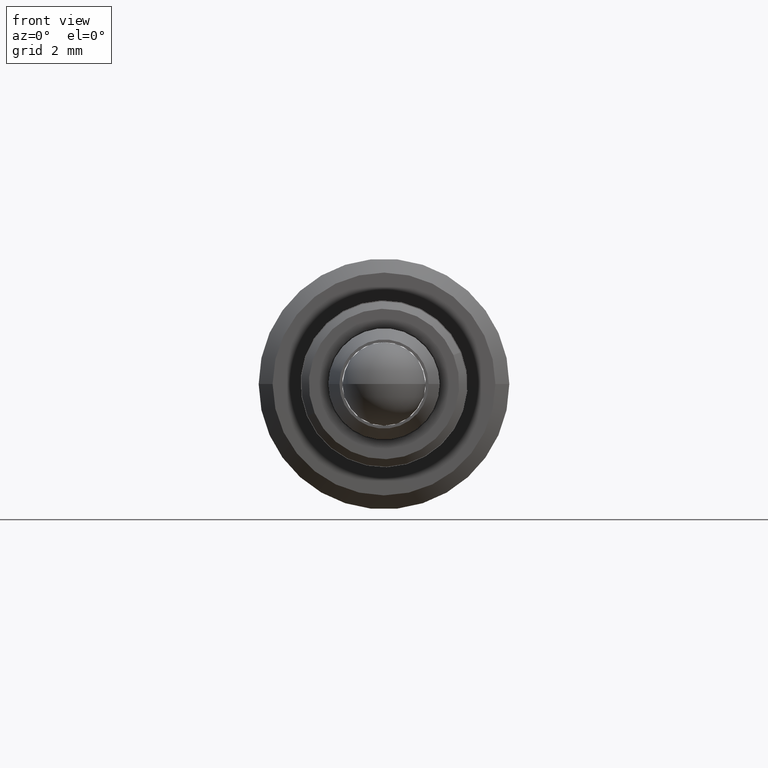
[diagram: clean part render]
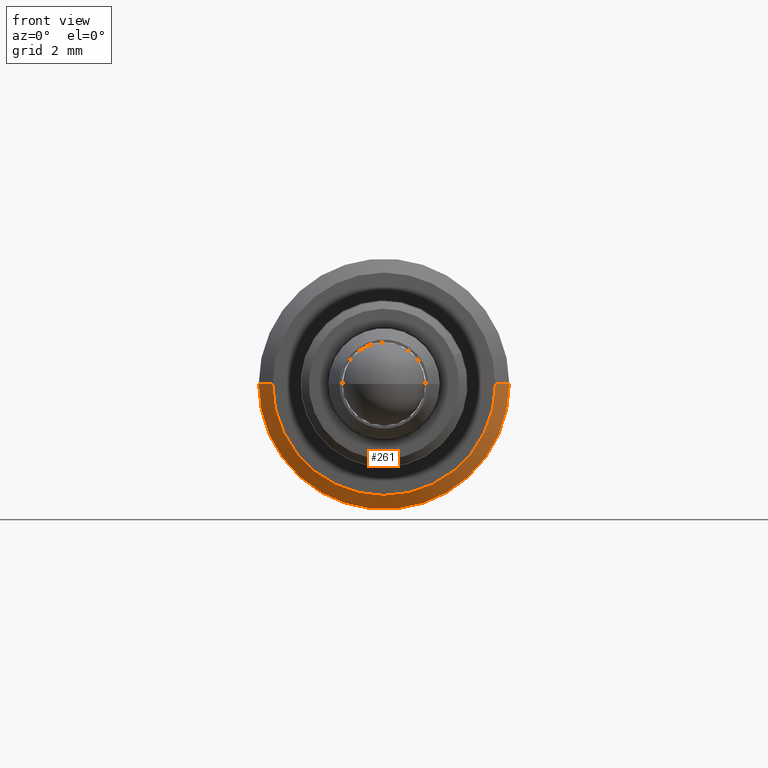
[diagram: same view with one face highlighted and labeled with its STEP entity id]
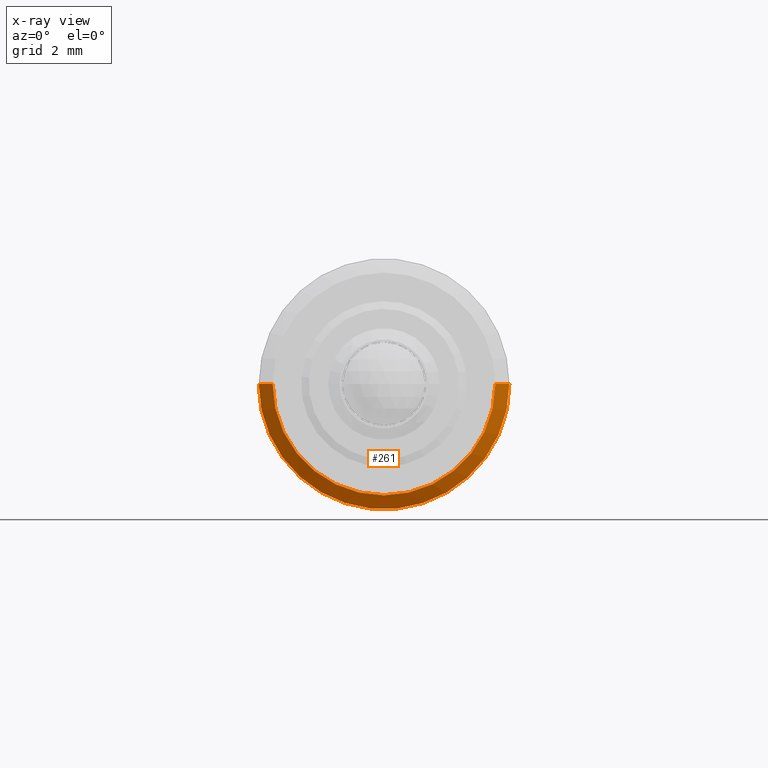
[diagram: x-ray of the same camera — body ghosted, the highlighted face saturated]
A machine part, front view. The second image highlights one B-rep face of the part: STEP entity #261.
The next image is the same camera in x-ray: the body ghosted, the highlighted face saturated — about 0% of this face is hidden behind the body in this view.
In plain terms, the highlighted conical surface has half-angle 45 deg.
Its self-contained STEP definition (entity closure, byte-faithful):
#10 = CARTESIAN_POINT ( 'NONE',  ( 4.386313430823045100, 20.13143070247039300, 17.11623035873974200 ) ) ;
#27 = CARTESIAN_POINT ( 'NONE',  ( 12.88631343082304400, 19.63143070247038900, 17.11623035873974200 ) ) ;
#44 = AXIS2_PLACEMENT_3D ( 'NONE', #83, #241, #508 ) ;
#83 = CARTESIAN_POINT ( 'NONE',  ( 8.886313430823047800, 19.63143070247038900, 17.11623035873974200 ) ) ;
#109 = CARTESIAN_POINT ( 'NONE',  ( 8.886313430823047800, 20.13143070247039300, 17.11623035873974200 ) ) ;
#128 = EDGE_CURVE ( 'NONE', #854, #236, #643, .T. ) ;
#170 = DIRECTION ( 'NONE',  ( -0.7071067811865492400, 0.7071067811865458000, 0.0000000000000000000 ) ) ;
#172 = VECTOR ( 'NONE', #438, 1000.000000000000100 ) ;
#186 = DIRECTION ( 'NONE',  ( 1.000000000000000000, 0.0000000000000000000, 0.0000000000000000000 ) ) ;
#232 = EDGE_CURVE ( 'NONE', #269, #854, #311, .T. ) ;
#234 = VECTOR ( 'NONE', #170, 1000.000000000000000 ) ;
#236 = VERTEX_POINT ( 'NONE', #582 ) ;
#241 = DIRECTION ( 'NONE',  ( -1.019221640393047800E-016, -1.000000000000000000, 0.0000000000000000000 ) ) ;
#243 = AXIS2_PLACEMENT_3D ( 'NONE', #109, #876, #186 ) ;
#261 = ADVANCED_FACE ( 'NONE', ( #285 ), #407, .T. ) ;
#269 = VERTEX_POINT ( 'NONE', #1020 ) ;
#279 = CARTESIAN_POINT ( 'NONE',  ( 4.386313430823044300, 20.13143070247039300, 17.11623035873974200 ) ) ;
#285 = FACE_OUTER_BOUND ( 'NONE', #1036, .T. ) ;
#311 = CIRCLE ( 'NONE', #44, 3.999999999999996400 ) ;
#331 = DIRECTION ( 'NONE',  ( 1.019221640393043800E-016, 1.000000000000000000, -0.0000000000000000000 ) ) ;
#397 = AXIS2_PLACEMENT_3D ( 'NONE', #768, #331, #938 ) ;
#407 = CONICAL_SURFACE ( 'NONE', #397, 4.500000000000002700, 0.7853981633974509400 ) ;
#438 = DIRECTION ( 'NONE',  ( 0.7071067811865493500, 0.7071067811865455700, 8.659560562354955000E-017 ) ) ;
#445 = ORIENTED_EDGE ( 'NONE', *, *, #128, .F. ) ;
#476 = LINE ( 'NONE', #10, #234 ) ;
#484 = ORIENTED_EDGE ( 'NONE', *, *, #790, .T. ) ;
#508 = DIRECTION ( 'NONE',  ( 1.000000000000000000, 0.0000000000000000000, 0.0000000000000000000 ) ) ;
#582 = CARTESIAN_POINT ( 'NONE',  ( 13.38631343082304800, 20.13143070247039300, 17.11623035873974200 ) ) ;
#595 = CARTESIAN_POINT ( 'NONE',  ( 13.38631343082305000, 20.13143070247039300, 17.11623035873974200 ) ) ;
#643 = LINE ( 'NONE', #595, #172 ) ;
#735 = ORIENTED_EDGE ( 'NONE', *, *, #833, .F. ) ;
#768 = CARTESIAN_POINT ( 'NONE',  ( 8.886313430823047800, 20.13143070247039300, 17.11623035873974200 ) ) ;
#790 = EDGE_CURVE ( 'NONE', #269, #1045, #476, .T. ) ;
#833 = EDGE_CURVE ( 'NONE', #236, #1045, #883, .T. ) ;
#854 = VERTEX_POINT ( 'NONE', #27 ) ;
#876 = DIRECTION ( 'NONE',  ( 1.019221640393043800E-016, 1.000000000000000000, -0.0000000000000000000 ) ) ;
#883 = CIRCLE ( 'NONE', #243, 4.500000000000002700 ) ;
#938 = DIRECTION ( 'NONE',  ( -1.000000000000000000, 0.0000000000000000000, 0.0000000000000000000 ) ) ;
#1020 = CARTESIAN_POINT ( 'NONE',  ( 4.886313430823050500, 19.63143070247038900, 17.11623035873974200 ) ) ;
#1036 = EDGE_LOOP ( 'NONE', ( #445, #1051, #484, #735 ) ) ;
#1045 = VERTEX_POINT ( 'NONE', #279 ) ;
#1051 = ORIENTED_EDGE ( 'NONE', *, *, #232, .F. ) ;